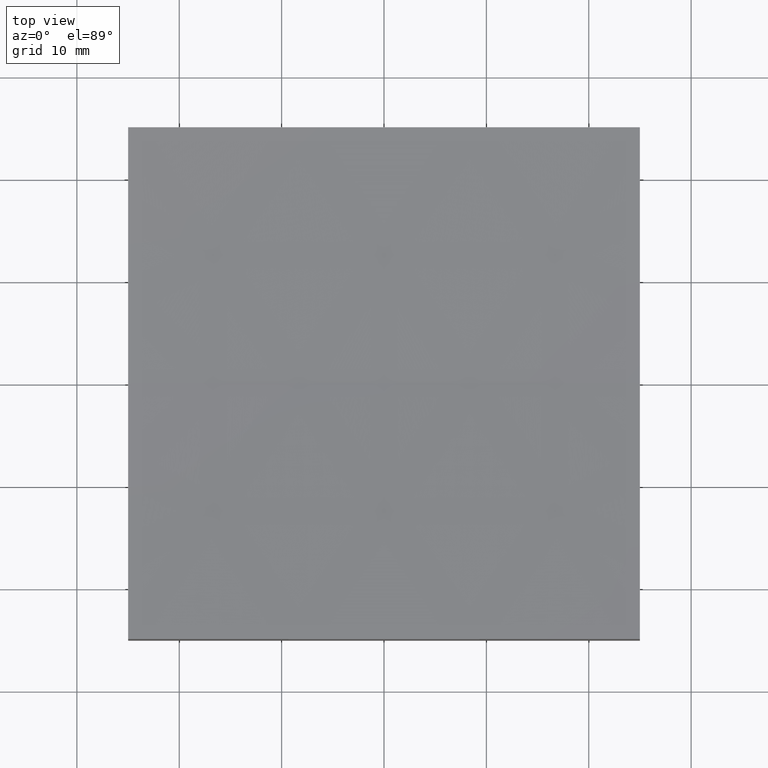
[diagram: clean part render]
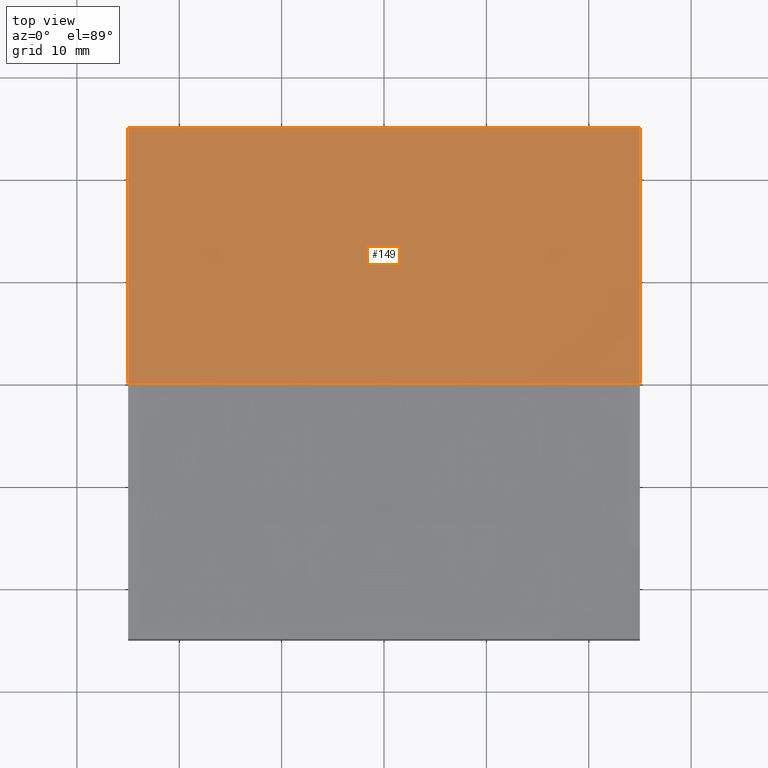
[diagram: same view with one face highlighted and labeled with its STEP entity id]
A machine part, top view. The second image highlights one B-rep face of the part: STEP entity #149.
In plain terms, the highlighted spherical surface has radius 500 mm.
Its self-contained STEP definition (entity closure, byte-faithful):
#1 = DIRECTION ( 'NONE',  ( 0.0000000000000000000, 0.0000000000000000000, -1.000000000000000000 ) ) ;
#3 = AXIS2_PLACEMENT_3D ( 'NONE', #20, #79, #159 ) ;
#4 = CIRCLE ( 'NONE', #30, 499.3746088859544443 ) ;
#19 = ORIENTED_EDGE ( 'NONE', *, *, #144, .T. ) ;
#20 = CARTESIAN_POINT ( 'NONE',  ( 6.233452207660027876E-14, 0.0000000000000000000, 509.0000000000000000 ) ) ;
#27 = DIRECTION ( 'NONE',  ( -6.947583818275299433E-17, 1.000000000000000000, 0.0000000000000000000 ) ) ;
#30 = AXIS2_PLACEMENT_3D ( 'NONE', #192, #201, #38 ) ;
#31 = VERTEX_POINT ( 'NONE', #169 ) ;
#36 = DIRECTION ( 'NONE',  ( 1.000000000000000000, 6.938893903907228378E-17, -0.0000000000000000000 ) ) ;
#38 = DIRECTION ( 'NONE',  ( 0.0000000000000000000, 0.0000000000000000000, 1.000000000000000000 ) ) ;
#40 = DIRECTION ( 'NONE',  ( 0.0000000000000000000, -1.000000000000000000, -0.0000000000000000000 ) ) ;
#42 = CARTESIAN_POINT ( 'NONE',  ( 9.202173048582265139E-14, 0.0000000000000000000, 9.000000000000007105 ) ) ;
#43 = AXIS2_PLACEMENT_3D ( 'NONE', #168, #153, #27 ) ;
#45 = EDGE_CURVE ( 'NONE', #174, #31, #4, .T. ) ;
#72 = ORIENTED_EDGE ( 'NONE', *, *, #45, .T. ) ;
#73 = DIRECTION ( 'NONE',  ( 1.224646799147353207E-16, 1.000000000000000000, -2.275299625143731854E-34 ) ) ;
#75 = CARTESIAN_POINT ( 'NONE',  ( 6.233452207660027876E-14, 0.0000000000000000000, 509.0000000000000000 ) ) ;
#76 = DIRECTION ( 'NONE',  ( -6.947583818275299433E-17, 1.000000000000000000, 0.0000000000000000000 ) ) ;
#79 = DIRECTION ( 'NONE',  ( -0.0000000000000000000, 1.000000000000000000, 0.0000000000000000000 ) ) ;
#87 = VERTEX_POINT ( 'NONE', #91 ) ;
#91 = CARTESIAN_POINT ( 'NONE',  ( -25.00000000000000355, 3.061616997868391720E-15, 9.625391114045534380 ) ) ;
#102 = CIRCLE ( 'NONE', #43, 499.3746088859545011 ) ;
#105 = CIRCLE ( 'NONE', #158, 500.0000000000000000 ) ;
#119 = SPHERICAL_SURFACE ( 'NONE', #3, 500.0000000000000000 ) ;
#120 = EDGE_CURVE ( 'NONE', #189, #174, #214, .T. ) ;
#131 = EDGE_LOOP ( 'NONE', ( #185, #19, #135, #72, #148 ) ) ;
#132 = CARTESIAN_POINT ( 'NONE',  ( 24.99999999999999645, 0.0000000000000000000, 9.625391114045534380 ) ) ;
#135 = ORIENTED_EDGE ( 'NONE', *, *, #120, .T. ) ;
#144 = EDGE_CURVE ( 'NONE', #186, #189, #218, .T. ) ;
#148 = ORIENTED_EDGE ( 'NONE', *, *, #211, .F. ) ;
#149 = ADVANCED_FACE ( 'NONE', ( #228 ), #119, .F. ) ;
#153 = DIRECTION ( 'NONE',  ( 1.000000000000000000, 6.938893903907228378E-17, -0.0000000000000000000 ) ) ;
#157 = CARTESIAN_POINT ( 'NONE',  ( 6.233452207660027876E-14, 0.0000000000000000000, 509.0000000000000000 ) ) ;
#158 = AXIS2_PLACEMENT_3D ( 'NONE', #157, #73, #225 ) ;
#159 = DIRECTION ( 'NONE',  ( 1.000000000000000000, 0.0000000000000000000, 0.0000000000000000000 ) ) ;
#166 = EDGE_CURVE ( 'NONE', #186, #87, #105, .T. ) ;
#168 = CARTESIAN_POINT ( 'NONE',  ( -25.00000000000000355, -1.734723475976811630E-15, 509.0000000000000000 ) ) ;
#169 = CARTESIAN_POINT ( 'NONE',  ( -25.00000000000000711, 24.99999999999999645, 10.25156641849989114 ) ) ;
#174 = VERTEX_POINT ( 'NONE', #178 ) ;
#178 = CARTESIAN_POINT ( 'NONE',  ( 24.99999999999999645, 24.99999999999999645, 10.25156641849989114 ) ) ;
#185 = ORIENTED_EDGE ( 'NONE', *, *, #166, .F. ) ;
#186 = VERTEX_POINT ( 'NONE', #42 ) ;
#189 = VERTEX_POINT ( 'NONE', #132 ) ;
#192 = CARTESIAN_POINT ( 'NONE',  ( 6.233452207660027876E-14, 24.99999999999999645, 509.0000000000000000 ) ) ;
#201 = DIRECTION ( 'NONE',  ( 0.0000000000000000000, 1.000000000000000000, 0.0000000000000000000 ) ) ;
#203 = AXIS2_PLACEMENT_3D ( 'NONE', #251, #36, #76 ) ;
#211 = EDGE_CURVE ( 'NONE', #87, #31, #102, .T. ) ;
#214 = CIRCLE ( 'NONE', #203, 499.3746088859545011 ) ;
#218 = CIRCLE ( 'NONE', #234, 500.0000000000000000 ) ;
#225 = DIRECTION ( 'NONE',  ( -1.000000000000000000, 1.224646799147353207E-16, 0.0000000000000000000 ) ) ;
#228 = FACE_OUTER_BOUND ( 'NONE', #131, .T. ) ;
#234 = AXIS2_PLACEMENT_3D ( 'NONE', #75, #40, #1 ) ;
#251 = CARTESIAN_POINT ( 'NONE',  ( 24.99999999999999645, 1.734723475976802756E-15, 509.0000000000000000 ) ) ;